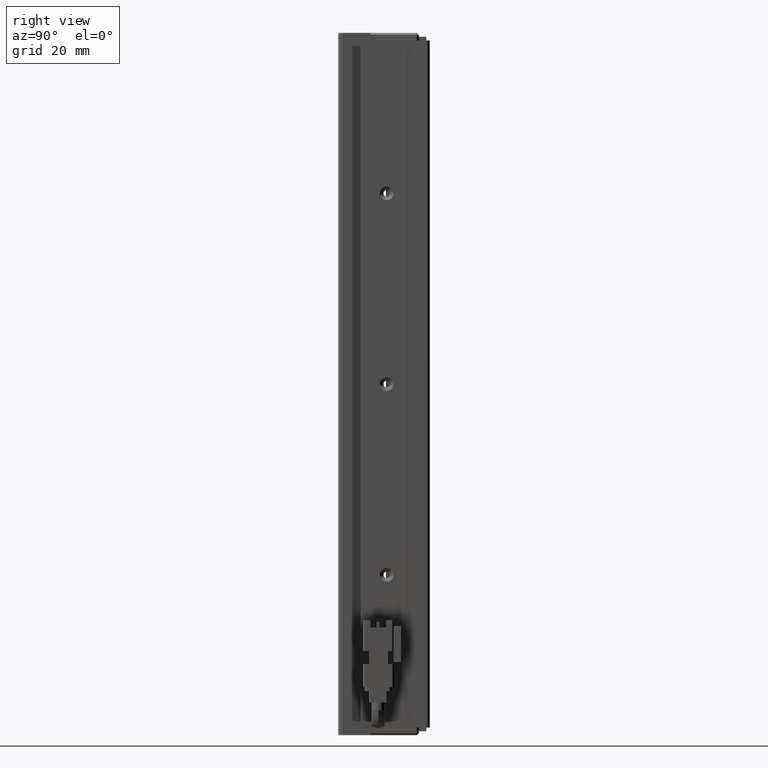
[diagram: clean part render]
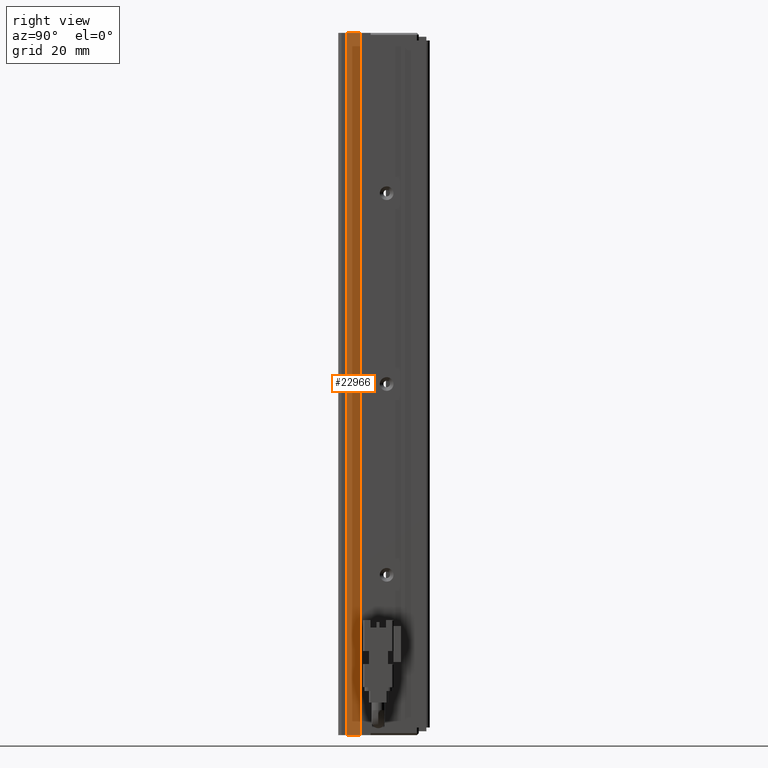
[diagram: same view with one face highlighted and labeled with its STEP entity id]
A machine part, right view. The second image highlights one B-rep face of the part: STEP entity #22966.
In plain terms, the highlighted planar face has unit normal (1, 0, -0).
Its self-contained STEP definition (entity closure, byte-faithful):
#461 = CARTESIAN_POINT ( 'NONE',  ( 46.62537974683541400, 13.29073232304837200, -23.00000000000000700 ) ) ;
#3009 = DIRECTION ( 'NONE',  ( -0.0000000000000000000, 0.0000000000000000000, -1.000000000000000000 ) ) ;
#5597 = EDGE_LOOP ( 'NONE', ( #14077, #38396, #36670, #22420 ) ) ;
#5985 = VERTEX_POINT ( 'NONE', #20651 ) ;
#6572 = LINE ( 'NONE', #15557, #35290 ) ;
#6740 = DIRECTION ( 'NONE',  ( 0.0000000000000000000, 1.000000000000000000, -0.0000000000000000000 ) ) ;
#6784 = CARTESIAN_POINT ( 'NONE',  ( 46.62537974683541400, 7.083797468354437600, -23.00000000000000700 ) ) ;
#11101 = EDGE_CURVE ( 'NONE', #12290, #5985, #35303, .T. ) ;
#11282 = DIRECTION ( 'NONE',  ( -0.0000000000000000000, 0.0000000000000000000, -1.000000000000000000 ) ) ;
#12290 = VERTEX_POINT ( 'NONE', #461 ) ;
#13322 = AXIS2_PLACEMENT_3D ( 'NONE', #6784, #14679, #3009 ) ;
#14077 = ORIENTED_EDGE ( 'NONE', *, *, #42181, .F. ) ;
#14679 = DIRECTION ( 'NONE',  ( 1.000000000000000000, 0.0000000000000000000, -0.0000000000000000000 ) ) ;
#15383 = VECTOR ( 'NONE', #11282, 1000.000000000000000 ) ;
#15557 = CARTESIAN_POINT ( 'NONE',  ( 46.62537974683541400, 16.79073232304837400, -23.00000000000000700 ) ) ;
#16866 = CARTESIAN_POINT ( 'NONE',  ( 46.62537974683541400, 7.083797468354437600, -207.0000000000000300 ) ) ;
#18991 = DIRECTION ( 'NONE',  ( 0.0000000000000000000, -0.0000000000000000000, 1.000000000000000000 ) ) ;
#19544 = VECTOR ( 'NONE', #46248, 1000.000000000000000 ) ;
#20651 = CARTESIAN_POINT ( 'NONE',  ( 46.62537974683541400, 13.29073232304837200, -207.0000000000000300 ) ) ;
#22420 = ORIENTED_EDGE ( 'NONE', *, *, #43751, .T. ) ;
#22966 = ADVANCED_FACE ( 'NONE', ( #34983 ), #37060, .T. ) ;
#25538 = CARTESIAN_POINT ( 'NONE',  ( 46.62537974683541400, 7.083797468354437600, -23.00000000000000700 ) ) ;
#27992 = VECTOR ( 'NONE', #6740, 1000.000000000000000 ) ;
#33178 = VERTEX_POINT ( 'NONE', #38732 ) ;
#33227 = VERTEX_POINT ( 'NONE', #39049 ) ;
#34983 = FACE_OUTER_BOUND ( 'NONE', #5597, .T. ) ;
#35290 = VECTOR ( 'NONE', #18991, 1000.000000000000000 ) ;
#35303 = LINE ( 'NONE', #37260, #15383 ) ;
#36670 = ORIENTED_EDGE ( 'NONE', *, *, #37007, .T. ) ;
#37007 = EDGE_CURVE ( 'NONE', #5985, #33178, #42912, .T. ) ;
#37060 = PLANE ( 'NONE',  #13322 ) ;
#37260 = CARTESIAN_POINT ( 'NONE',  ( 46.62537974683541400, 13.29073232304837000, -23.00000000000000700 ) ) ;
#38396 = ORIENTED_EDGE ( 'NONE', *, *, #11101, .T. ) ;
#38732 = CARTESIAN_POINT ( 'NONE',  ( 46.62537974683541400, 16.79073232304837400, -207.0000000000000300 ) ) ;
#39049 = CARTESIAN_POINT ( 'NONE',  ( 46.62537974683541400, 16.79073232304837400, -23.00000000000000700 ) ) ;
#42181 = EDGE_CURVE ( 'NONE', #12290, #33227, #47891, .T. ) ;
#42912 = LINE ( 'NONE', #16866, #19544 ) ;
#43751 = EDGE_CURVE ( 'NONE', #33178, #33227, #6572, .T. ) ;
#46248 = DIRECTION ( 'NONE',  ( 0.0000000000000000000, 1.000000000000000000, -0.0000000000000000000 ) ) ;
#47891 = LINE ( 'NONE', #25538, #27992 ) ;